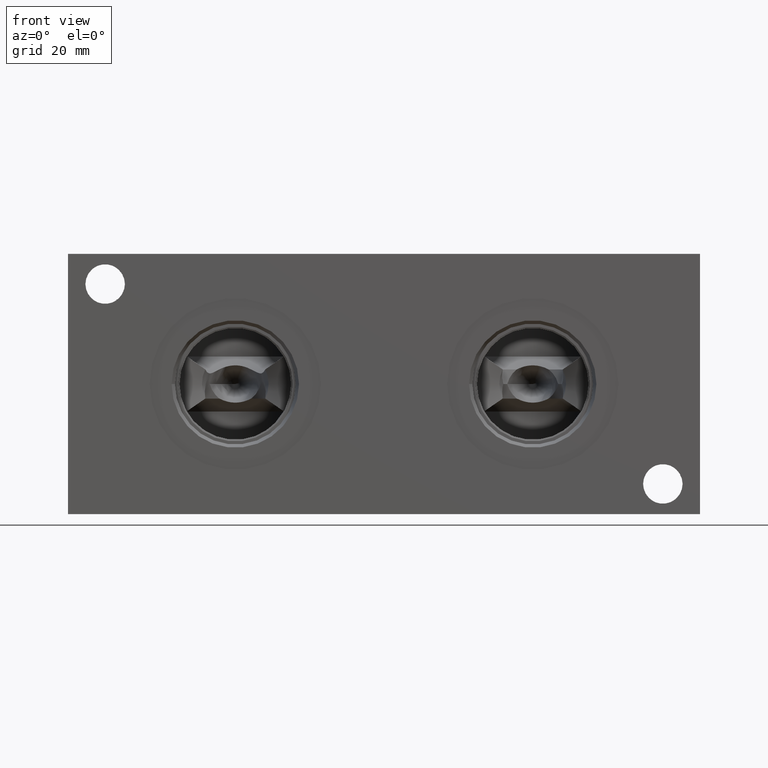
[diagram: clean part render]
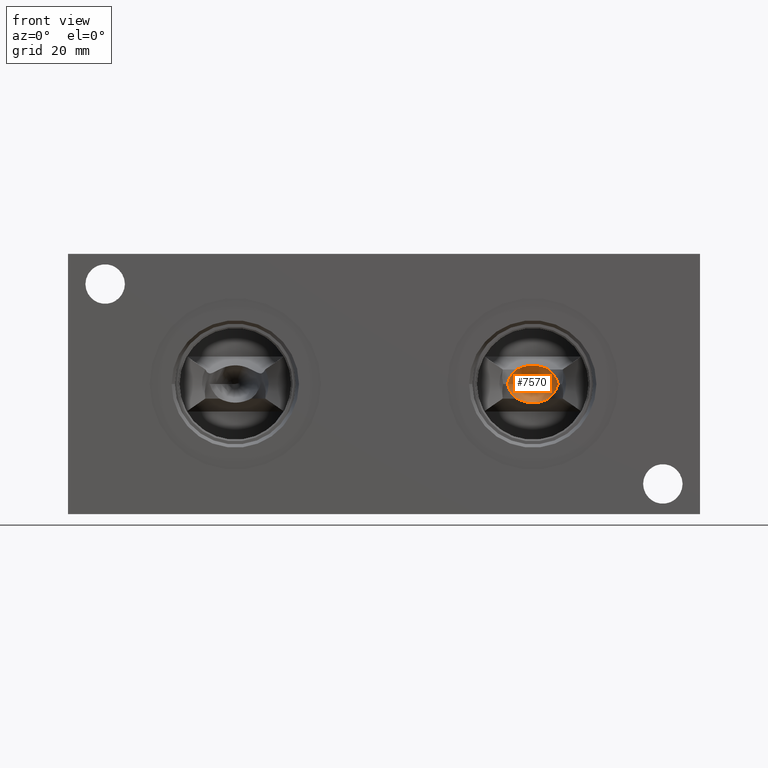
[diagram: same view with one face highlighted and labeled with its STEP entity id]
A machine part, front view. The second image highlights one B-rep face of the part: STEP entity #7570.
In plain terms, the highlighted conical surface has half-angle 15 deg.
Its self-contained STEP definition (entity closure, byte-faithful):
#37=CONICAL_SURFACE('',#7963,10.87755,0.261799387799149);
#56=ELLIPSE('',#7886,13.2728180250041,9.0421077923056);
#65=ELLIPSE('',#7937,13.2728180250041,9.0421077923056);
#67=ELLIPSE('',#7955,13.2728180250041,9.04210779230565);
#68=ELLIPSE('',#7964,13.2728180250041,9.04210779230565);
#494=B_SPLINE_CURVE_WITH_KNOTS('',3,(#12716,#12717,#12718,#12719,#12720,
#12721,#12722,#12723,#12724,#12725,#12726,#12727,#12728,#12729,#12730,#12731,
#12732,#12733),.UNSPECIFIED.,.F.,.F.,(4,2,2,2,2,2,2,2,4),(4.37858525669416,
4.4627593967151,4.68942346559542,4.86940161413519,5.04937976267497,5.22935791121474,
5.40933605975452,5.63600012863483,5.72017426865576),.UNSPECIFIED.);
#505=B_SPLINE_CURVE_WITH_KNOTS('',3,(#12982,#12983,#12984,#12985,#12986,
#12987,#12988,#12989,#12990,#12991,#12992,#12993,#12994,#12995,#12996,#12997,
#12998,#12999),.UNSPECIFIED.,.F.,.F.,(4,2,2,2,2,2,2,2,4),(4.37858525669417,
4.46275939671509,4.68942346559541,4.86940161413519,5.04937976267496,5.22935791121474,
5.40933605975451,5.63600012863483,5.72017426865576),.UNSPECIFIED.);
#944=FACE_OUTER_BOUND('',#1368,.T.);
#1368=EDGE_LOOP('',(#6455,#6456,#6457,#6458,#6459,#6460,#6461,#6462));
#2088=LINE('',#13008,#2782);
#2782=VECTOR('',#9397,10.87755);
#3400=VERTEX_POINT('',#12713);
#3401=VERTEX_POINT('',#12715);
#3419=VERTEX_POINT('',#12813);
#3448=VERTEX_POINT('',#12902);
#3456=VERTEX_POINT('',#12974);
#3458=VERTEX_POINT('',#12981);
#3460=VERTEX_POINT('',#13007);
#4383=EDGE_CURVE('',#3401,#3400,#494,.T.);
#4411=EDGE_CURVE('',#3419,#3401,#56,.T.);
#4455=EDGE_CURVE('',#3400,#3448,#65,.T.);
#4470=EDGE_CURVE('',#3456,#3419,#67,.T.);
#4474=EDGE_CURVE('',#3458,#3456,#505,.T.);
#4478=EDGE_CURVE('',#3448,#3458,#68,.T.);
#4479=EDGE_CURVE('',#3419,#3460,#2088,.T.);
#6455=ORIENTED_EDGE('',*,*,#4383,.T.);
#6456=ORIENTED_EDGE('',*,*,#4455,.T.);
#6457=ORIENTED_EDGE('',*,*,#4478,.T.);
#6458=ORIENTED_EDGE('',*,*,#4474,.T.);
#6459=ORIENTED_EDGE('',*,*,#4470,.T.);
#6460=ORIENTED_EDGE('',*,*,#4479,.T.);
#6461=ORIENTED_EDGE('',*,*,#4479,.F.);
#6462=ORIENTED_EDGE('',*,*,#4411,.T.);
#7570=ADVANCED_FACE('',(#944),#37,.F.);
#7886=AXIS2_PLACEMENT_3D('',#12814,#9225,#9226);
#7937=AXIS2_PLACEMENT_3D('',#12904,#9337,#9338);
#7955=AXIS2_PLACEMENT_3D('',#12975,#9376,#9377);
#7963=AXIS2_PLACEMENT_3D('',#13005,#9393,#9394);
#7964=AXIS2_PLACEMENT_3D('',#13006,#9395,#9396);
#9225=DIRECTION('center_axis',(0.,-0.707106781186548,-0.707106781186547));
#9226=DIRECTION('ref_axis',(-1.47217608171771E-14,0.707106781186547,-0.707106781186548));
#9337=DIRECTION('center_axis',(0.,-0.707106781186548,-0.707106781186547));
#9338=DIRECTION('ref_axis',(-1.47217608171771E-14,0.707106781186547,-0.707106781186548));
#9376=DIRECTION('center_axis',(0.,-0.707106781186548,0.707106781186548));
#9377=DIRECTION('ref_axis',(2.6766837849413E-15,0.707106781186548,0.707106781186548));
#9393=DIRECTION('center_axis',(0.,-1.,0.));
#9394=DIRECTION('ref_axis',(1.,0.,0.));
#9395=DIRECTION('center_axis',(0.,-0.707106781186548,0.707106781186548));
#9396=DIRECTION('ref_axis',(2.6766837849413E-15,0.707106781186548,0.707106781186548));
#9397=DIRECTION('',(0.258819045102521,0.965925826289068,3.16961915143176E-17));
#12713=CARTESIAN_POINT('',(164.199743477589,54.4538998996366,39.47566701403));
#12715=CARTESIAN_POINT('',(153.300256522411,54.4538998996366,39.4756670140299));
#12716=CARTESIAN_POINT('Ctrl Pts',(153.300256522411,54.4538998996366,39.4756670140299));
#12717=CARTESIAN_POINT('Ctrl Pts',(153.461360226934,54.69824135844,39.3962816909986));
#12718=CARTESIAN_POINT('Ctrl Pts',(153.63099327909,54.9405260029802,39.3151910481607));
#12719=CARTESIAN_POINT('Ctrl Pts',(154.285946763609,55.8121135986467,39.0163709767179));
#12720=CARTESIAN_POINT('Ctrl Pts',(154.822031978291,56.4006734508042,38.800165357076));
#12721=CARTESIAN_POINT('Ctrl Pts',(155.830291868205,57.2481919135254,38.4801116555958));
#12722=CARTESIAN_POINT('Ctrl Pts',(156.363552771741,57.6081040112287,38.3400485882172));
#12723=CARTESIAN_POINT('Ctrl Pts',(157.522329073748,58.1092782851718,38.1426424684798));
#12724=CARTESIAN_POINT('Ctrl Pts',(158.150072838201,58.2462662759008,38.0875645798593));
#12725=CARTESIAN_POINT('Ctrl Pts',(159.349927161799,58.2462662759008,38.0875645798593));
#12726=CARTESIAN_POINT('Ctrl Pts',(159.977670926252,58.1092782851718,38.1426424684798));
#12727=CARTESIAN_POINT('Ctrl Pts',(161.136447228259,57.6081040112287,38.3400485882172));
#12728=CARTESIAN_POINT('Ctrl Pts',(161.669708131795,57.2481919135254,38.4801116555958));
#12729=CARTESIAN_POINT('Ctrl Pts',(162.677968021708,56.4006734508042,38.800165357076));
#12730=CARTESIAN_POINT('Ctrl Pts',(163.214053236391,55.8121135986467,39.0163709767179));
#12731=CARTESIAN_POINT('Ctrl Pts',(163.86900672091,54.9405260029802,39.3151910481607));
#12732=CARTESIAN_POINT('Ctrl Pts',(164.038639773066,54.6982413584399,39.3962816909986));
#12733=CARTESIAN_POINT('Ctrl Pts',(164.199743477589,54.4538998996366,39.4756670140299));
#12813=CARTESIAN_POINT('',(150.038534565462,49.4795669136665,44.45));
#12814=CARTESIAN_POINT('Origin',(158.75,46.9647834568333,46.9647834568333));
#12902=CARTESIAN_POINT('',(167.461465434538,49.4795669136665,44.4499999999999));
#12904=CARTESIAN_POINT('Origin',(158.75,46.9647834568333,46.9647834568333));
#12974=CARTESIAN_POINT('',(153.300256522411,54.4538998996366,49.4243329859701));
#12975=CARTESIAN_POINT('Origin',(158.75,46.9647834568333,41.9352165431667));
#12981=CARTESIAN_POINT('',(164.199743477589,54.4538998996366,49.4243329859701));
#12982=CARTESIAN_POINT('Ctrl Pts',(164.199743477589,54.4538998996366,49.4243329859701));
#12983=CARTESIAN_POINT('Ctrl Pts',(164.038639773066,54.6982413584399,49.5037183090014));
#12984=CARTESIAN_POINT('Ctrl Pts',(163.86900672091,54.9405260029802,49.5848089518393));
#12985=CARTESIAN_POINT('Ctrl Pts',(163.214053236391,55.8121135986467,49.8836290232821));
#12986=CARTESIAN_POINT('Ctrl Pts',(162.677968021708,56.4006734508042,50.099834642924));
#12987=CARTESIAN_POINT('Ctrl Pts',(161.669708131795,57.2481919135254,50.4198883444042));
#12988=CARTESIAN_POINT('Ctrl Pts',(161.136447228259,57.6081040112287,50.5599514117828));
#12989=CARTESIAN_POINT('Ctrl Pts',(159.977670926252,58.1092782851718,50.7573575315202));
#12990=CARTESIAN_POINT('Ctrl Pts',(159.349927161799,58.2462662759008,50.8124354201407));
#12991=CARTESIAN_POINT('Ctrl Pts',(158.150072838201,58.2462662759008,50.8124354201407));
#12992=CARTESIAN_POINT('Ctrl Pts',(157.522329073748,58.1092782851718,50.7573575315202));
#12993=CARTESIAN_POINT('Ctrl Pts',(156.363552771741,57.6081040112287,50.5599514117828));
#12994=CARTESIAN_POINT('Ctrl Pts',(155.830291868205,57.2481919135254,50.4198883444042));
#12995=CARTESIAN_POINT('Ctrl Pts',(154.822031978291,56.4006734508042,50.099834642924));
#12996=CARTESIAN_POINT('Ctrl Pts',(154.285946763609,55.8121135986467,49.8836290232821));
#12997=CARTESIAN_POINT('Ctrl Pts',(153.63099327909,54.9405260029802,49.5848089518393));
#12998=CARTESIAN_POINT('Ctrl Pts',(153.461360226934,54.69824135844,49.5037183090014));
#12999=CARTESIAN_POINT('Ctrl Pts',(153.300256522411,54.4538998996366,49.4243329859701));
#13005=CARTESIAN_POINT('Origin',(158.75,41.3956292618708,44.45));
#13006=CARTESIAN_POINT('Origin',(158.75,46.9647834568333,41.9352165431667));
#13007=CARTESIAN_POINT('',(158.75,81.9911985237417,44.45));
#13008=CARTESIAN_POINT('',(147.87245,41.3956292618708,44.45));